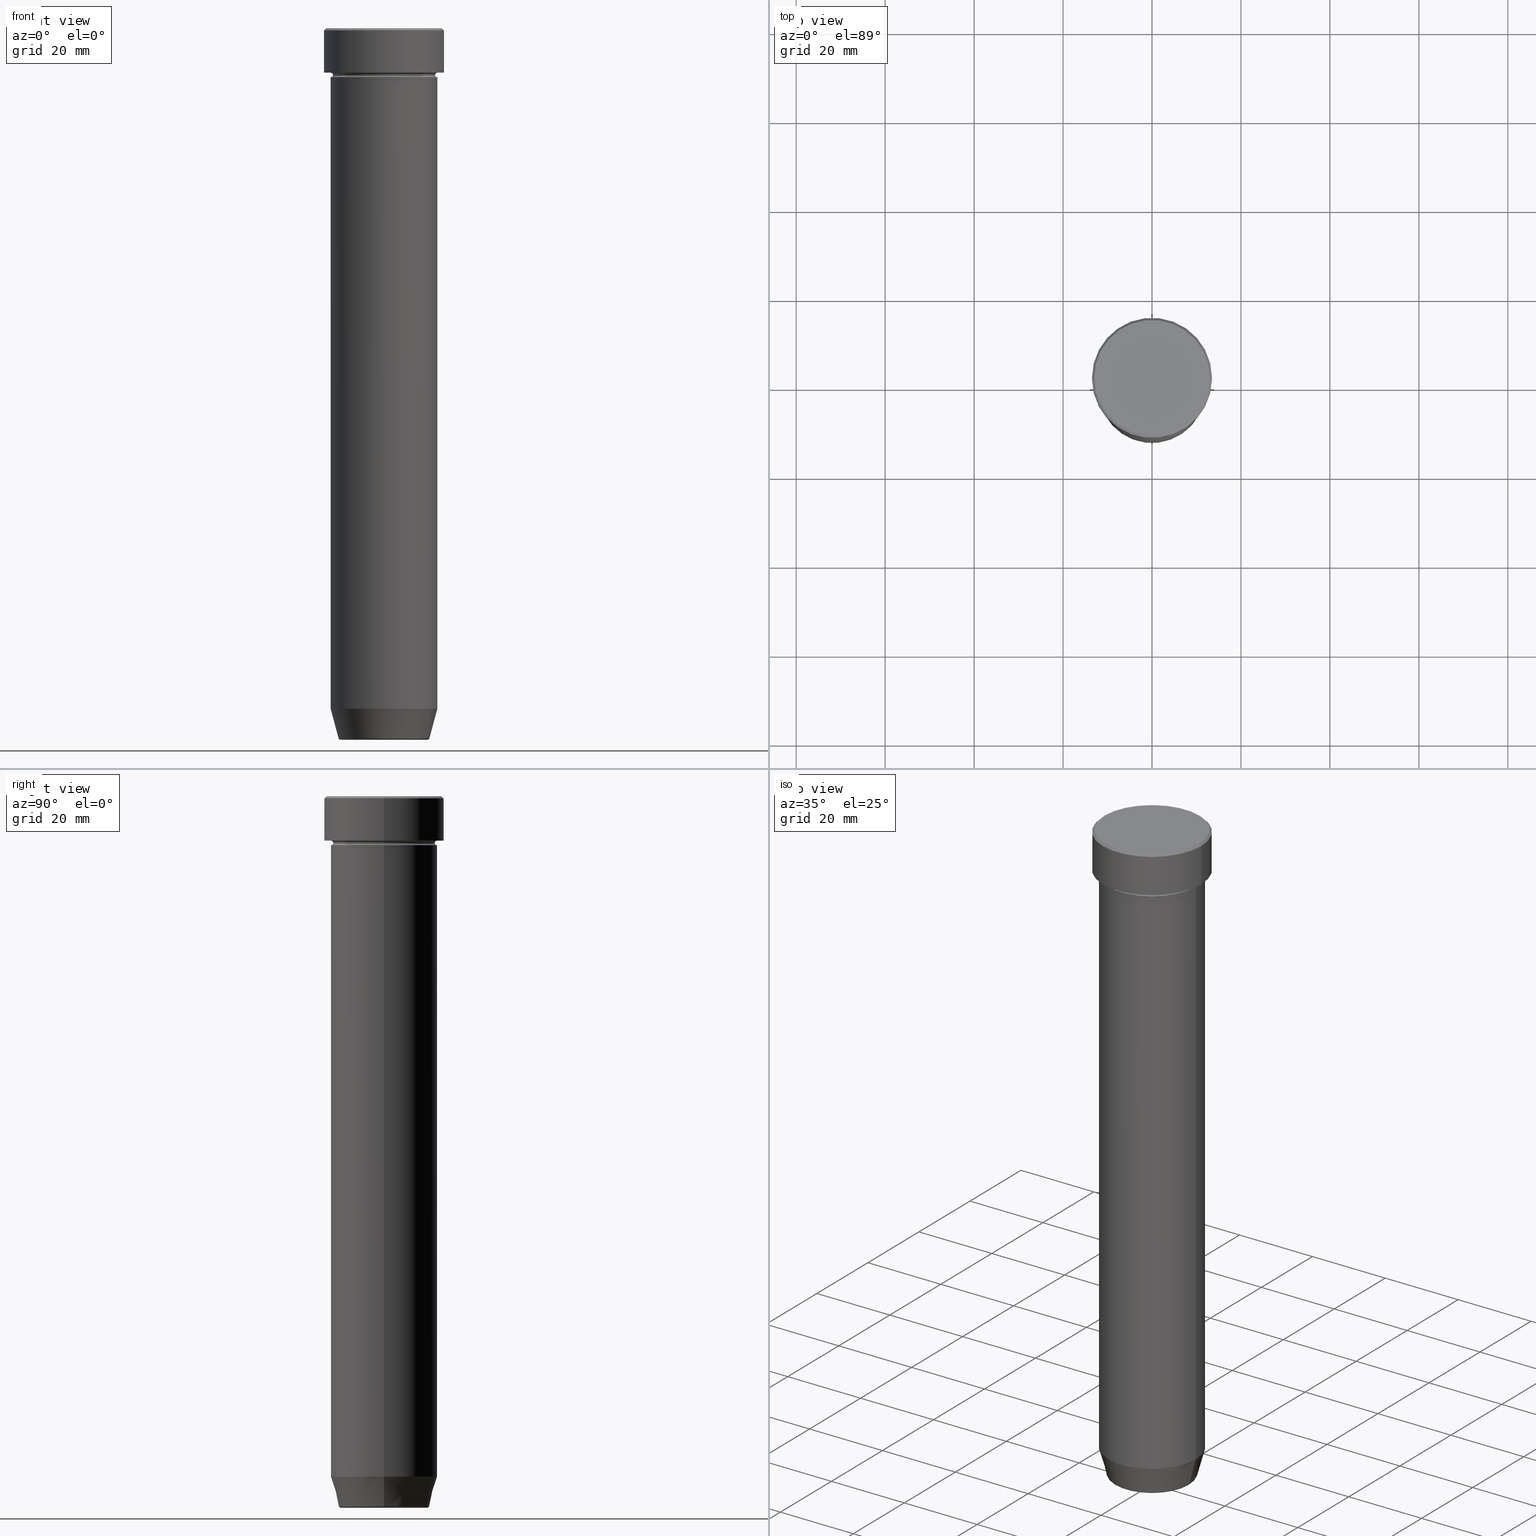
[diagram: canonical four-view strip — front | top / right | iso, engineering-drawing reading convention]
A machine part, canonical four-view strip (front | top / right | iso — engineering-drawing reading convention). The complete STEP part file that produces these views, byte-faithful:
ISO-10303-21;
HEADER;
FILE_DESCRIPTION (( 'STEP AP203' ),
    '1' );
FILE_NAME ('dc80.STEP',
    '2024-01-02T19:19:34',
    ( '' ),
    ( '' ),
    'SwSTEP 2.0',
    'SolidWorks 2019',
    '' );
FILE_SCHEMA (( 'CONFIG_CONTROL_DESIGN' ));
ENDSEC;

DATA;
#1 = SECURITY_CLASSIFICATION_LEVEL ( 'unclassified' ) ;
#2 = ADVANCED_FACE ( 'NONE', ( #145 ), #514, .T. ) ;
#3 = COORDINATED_UNIVERSAL_TIME_OFFSET ( 1, 0, .AHEAD. ) ;
#4 = ORIENTED_EDGE ( 'NONE', *, *, #65, .T. ) ;
#5 = CIRCLE ( 'NONE', #372, 12.00000000000000000 ) ;
#6 = LOCAL_TIME ( 20, 19, 34.00000000000000000, #332 ) ;
#7 = DIRECTION ( 'NONE',  ( 0.000000000000000000, 0.000000000000000000, -1.000000000000000000 ) ) ;
#8 = DIRECTION ( 'NONE',  ( 1.000000000000000000, 0.000000000000000000, 0.000000000000000000 ) ) ;
#9 = CARTESIAN_POINT ( 'NONE',  ( 0.000000000000000000, 0.000000000000000000, -27.00000000000000000 ) ) ;
#10 = CALENDAR_DATE ( 2024, 2, 1 ) ;
#11 = CARTESIAN_POINT ( 'NONE',  ( 0.000000000000000000, 0.000000000000000000, 0.000000000000000000 ) ) ;
#12 = CARTESIAN_POINT ( 'NONE',  ( -13.50000000000000000, 1.653273178848926867E-15, -10.00000000000000000 ) ) ;
#13 = PRODUCT_DEFINITION ( 'NEZN�M�', '', #16, #462 ) ;
#14 = ORIENTED_EDGE ( 'NONE', *, *, #20, .F. ) ;
#15 = AXIS2_PLACEMENT_3D ( 'NONE', #349, #395, #441 ) ;
#16 = PRODUCT_DEFINITION_FORMATION_WITH_SPECIFIED_SOURCE ( 'LIBOVOLN�', '', #133, .NOT_KNOWN. ) ;
#17 = DIRECTION ( 'NONE',  ( 0.000000000000000000, 0.000000000000000000, -1.000000000000000000 ) ) ;
#18 = CARTESIAN_POINT ( 'NONE',  ( 12.00000000000000000, 0.000000000000000000, -11.00000000000000000 ) ) ;
#19 = CARTESIAN_POINT ( 'NONE',  ( 0.000000000000000000, 0.000000000000000000, 0.000000000000000000 ) ) ;
#20 = EDGE_CURVE ( 'NONE', #39, #230, #48, .T. ) ;
#21 = ORIENTED_EDGE ( 'NONE', *, *, #258, .T. ) ;
#22 = DIRECTION ( 'NONE',  ( -1.000000000000000000, 0.000000000000000000, 0.000000000000000000 ) ) ;
#23 = CARTESIAN_POINT ( 'NONE',  ( 11.50000000000000000, 0.000000000000000000, -10.49999999999999822 ) ) ;
#24 = DIRECTION ( 'NONE',  ( 1.000000000000000000, 0.000000000000000000, 0.000000000000000000 ) ) ;
#25 = ORIENTED_EDGE ( 'NONE', *, *, #494, .F. ) ;
#26 = CIRCLE ( 'NONE', #438, 9.740692158992649397 ) ;
#27 = TOROIDAL_SURFACE ( 'NONE', #505, 12.00000000000000000, 0.5000000000000000000 ) ;
#28 = DIRECTION ( 'NONE',  ( -0.000000000000000000, -0.000000000000000000, 1.000000000000000000 ) ) ;
#29 = PLANE ( 'NONE',  #138 ) ;
#30 = ORIENTED_EDGE ( 'NONE', *, *, #73, .T. ) ;
#31 = CARTESIAN_POINT ( 'NONE',  ( 0.000000000000000000, 0.000000000000000000, -159.5000000000000000 ) ) ;
#32 = EDGE_CURVE ( 'NONE', #230, #39, #99, .T. ) ;
#33 = CYLINDRICAL_SURFACE ( 'NONE', #439, 13.50000000000000000 ) ;
#34 = ORIENTED_EDGE ( 'NONE', *, *, #526, .T. ) ;
#35 = EDGE_CURVE ( 'NONE', #39, #263, #57, .T. ) ;
#36 = PLANE ( 'NONE',  #284 ) ;
#37 = ORIENTED_EDGE ( 'NONE', *, *, #449, .F. ) ;
#38 = DIRECTION ( 'NONE',  ( -0.7071067811865439090, 0.000000000000000000, -0.7071067811865512365 ) ) ;
#39 = VERTEX_POINT ( 'NONE', #249 ) ;
#40 = AXIS2_PLACEMENT_3D ( 'NONE', #440, #518, #66 ) ;
#41 = FACE_OUTER_BOUND ( 'NONE', #409, .T. ) ;
#42 = ADVANCED_FACE ( 'NONE', ( #245 ), #259, .T. ) ;
#43 = ORIENTED_EDGE ( 'NONE', *, *, #526, .F. ) ;
#44 = ORIENTED_EDGE ( 'NONE', *, *, #236, .F. ) ;
#45 = CARTESIAN_POINT ( 'NONE',  ( -11.50000000000000000, 1.438959988998139963E-15, -10.49999999999999822 ) ) ;
#46 = DIRECTION ( 'NONE',  ( -1.000000000000000000, 1.224646799147353454E-16, 0.000000000000000000 ) ) ;
#47 = CARTESIAN_POINT ( 'NONE',  ( -12.99999999999999645, 0.000000000000000000, 0.000000000000000000 ) ) ;
#48 = CIRCLE ( 'NONE', #536, 12.00000000000000000 ) ;
#49 = AXIS2_PLACEMENT_3D ( 'NONE', #31, #78, #24 ) ;
#50 = PERSON_AND_ORGANIZATION ( #545, #285 ) ;
#51 = DIRECTION ( 'NONE',  ( 1.000000000000000000, 0.000000000000000000, 0.000000000000000000 ) ) ;
#52 = ADVANCED_FACE ( 'NONE', ( #561 ), #265, .T. ) ;
#53 = DATE_AND_TIME ( #331, #308 ) ;
#54 = ORIENTED_EDGE ( 'NONE', *, *, #486, .T. ) ;
#55 = EDGE_CURVE ( 'NONE', #412, #227, #67, .T. ) ;
#56 = APPROVAL_DATE_TIME ( #148, #509 ) ;
#57 = LINE ( 'NONE', #512, #511 ) ;
#58 = SHAPE_DEFINITION_REPRESENTATION ( #497, #396 ) ;
#59 = CIRCLE ( 'NONE', #478, 0.5000000000000004441 ) ;
#60 = VECTOR ( 'NONE', #343, 1000.000000000000000 ) ;
#61 = APPROVAL_STATUS ( 'not_yet_approved' ) ;
#62 = DIRECTION ( 'NONE',  ( 0.000000000000000000, 0.000000000000000000, -1.000000000000000000 ) ) ;
#63 = CARTESIAN_POINT ( 'NONE',  ( 12.00000000000000000, 0.000000000000000000, -27.00000000000000000 ) ) ;
#64 = EDGE_LOOP ( 'NONE', ( #356, #21, #280, #274 ) ) ;
#65 = EDGE_CURVE ( 'NONE', #333, #263, #114, .T. ) ;
#66 = DIRECTION ( 'NONE',  ( -1.000000000000000000, 0.000000000000000000, 0.000000000000000000 ) ) ;
#67 = CIRCLE ( 'NONE', #371, 12.00000000000000000 ) ;
#68 = ORIENTED_EDGE ( 'NONE', *, *, #32, .F. ) ;
#69 = DIRECTION ( 'NONE',  ( -0.000000000000000000, -0.000000000000000000, 1.000000000000000000 ) ) ;
#70 = AXIS2_PLACEMENT_3D ( 'NONE', #303, #299, #568 ) ;
#71 = AXIS2_PLACEMENT_3D ( 'NONE', #452, #279, #534 ) ;
#72 = CC_DESIGN_PERSON_AND_ORGANIZATION_ASSIGNMENT ( #556, #244, ( #13 ) ) ;
#73 = EDGE_CURVE ( 'NONE', #348, #257, #26, .T. ) ;
#74 = LINE ( 'NONE', #433, #60 ) ;
#75 = ORIENTED_EDGE ( 'NONE', *, *, #255, .T. ) ;
#76 = DIRECTION ( 'NONE',  ( -0.000000000000000000, -0.000000000000000000, 1.000000000000000000 ) ) ;
#77 = VERTEX_POINT ( 'NONE', #547 ) ;
#78 = DIRECTION ( 'NONE',  ( -0.000000000000000000, -0.000000000000000000, 1.000000000000000000 ) ) ;
#79 = ORIENTED_EDGE ( 'NONE', *, *, #312, .F. ) ;
#80 = FACE_OUTER_BOUND ( 'NONE', #557, .T. ) ;
#81 = CARTESIAN_POINT ( 'NONE',  ( 12.00000000000000000, 0.000000000000000000, -152.9999999999999716 ) ) ;
#82 = CONICAL_SURFACE ( 'NONE', #40, 12.99999999999999645, 0.7853981633974431720 ) ;
#83 = DIRECTION ( 'NONE',  ( 1.000000000000000000, 0.000000000000000000, 0.000000000000000000 ) ) ;
#84 = FACE_OUTER_BOUND ( 'NONE', #397, .T. ) ;
#85 = DIRECTION ( 'NONE',  ( 1.000000000000000000, 0.000000000000000000, 0.000000000000000000 ) ) ;
#86 = DIRECTION ( 'NONE',  ( 1.000000000000000000, 0.000000000000000000, 0.000000000000000000 ) ) ;
#87 = ORIENTED_EDGE ( 'NONE', *, *, #255, .F. ) ;
#88 = CARTESIAN_POINT ( 'NONE',  ( 0.000000000000000000, 0.000000000000000000, -10.00000000000000000 ) ) ;
#89 = EDGE_LOOP ( 'NONE', ( #359, #390, #239, #87 ) ) ;
#90 = AXIS2_PLACEMENT_3D ( 'NONE', #217, #166, #488 ) ;
#91 = CC_DESIGN_PERSON_AND_ORGANIZATION_ASSIGNMENT ( #151, #105, ( #178 ) ) ;
#92 = DIRECTION ( 'NONE',  ( 1.000000000000000000, 0.000000000000000000, 0.000000000000000000 ) ) ;
#93 = CARTESIAN_POINT ( 'NONE',  ( -12.00000000000000000, 1.469576158976823947E-15, 0.000000000000000000 ) ) ;
#94 = EDGE_LOOP ( 'NONE', ( #186, #235, #500, #134 ) ) ;
#95 = CARTESIAN_POINT ( 'NONE',  ( 12.00000000000000000, 0.000000000000000000, -10.49999999999999822 ) ) ;
#96 = DIRECTION ( 'NONE',  ( 1.000000000000000000, 0.000000000000000000, 0.000000000000000000 ) ) ;
#97 = DIRECTION ( 'NONE',  ( 0.000000000000000000, -1.000000000000000000, 0.000000000000000000 ) ) ;
#98 = ADVANCED_FACE ( 'NONE', ( #266 ), #82, .T. ) ;
#99 = CIRCLE ( 'NONE', #428, 12.00000000000000000 ) ;
#100 = TOROIDAL_SURFACE ( 'NONE', #292, 12.00000000000000000, 0.5000000000000000000 ) ;
#101 = PERSON_AND_ORGANIZATION ( #545, #285 ) ;
#102 = ORIENTED_EDGE ( 'NONE', *, *, #382, .T. ) ;
#103 = ADVANCED_FACE ( 'NONE', ( #430 ), #563, .T. ) ;
#104 = CARTESIAN_POINT ( 'NONE',  ( 0.000000000000000000, 0.000000000000000000, 0.000000000000000000 ) ) ;
#105 = PERSON_AND_ORGANIZATION_ROLE ( 'classification_officer' ) ;
#106 = APPLICATION_PROTOCOL_DEFINITION ( 'international standard', 'config_control_design', 1994, #194 ) ;
#107 = DIRECTION ( 'NONE',  ( 1.000000000000000000, 0.000000000000000000, 0.000000000000000000 ) ) ;
#108 = AXIS2_PLACEMENT_3D ( 'NONE', #110, #337, #399 ) ;
#109 = DIRECTION ( 'NONE',  ( -1.000000000000000000, 1.224646799147353454E-16, 0.000000000000000000 ) ) ;
#110 = CARTESIAN_POINT ( 'NONE',  ( 0.000000000000000000, 0.000000000000000000, -160.0000000000000000 ) ) ;
#111 = CC_DESIGN_PERSON_AND_ORGANIZATION_ASSIGNMENT ( #200, #154, ( #133 ) ) ;
#112 = CARTESIAN_POINT ( 'NONE',  ( 0.000000000000000000, 0.000000000000000000, -27.00000000000000000 ) ) ;
#113 = DIRECTION ( 'NONE',  ( 0.000000000000000000, -1.000000000000000000, 0.000000000000000000 ) ) ;
#114 = CIRCLE ( 'NONE', #116, 12.00000000000000000 ) ;
#115 = VERTEX_POINT ( 'NONE', #63 ) ;
#116 = AXIS2_PLACEMENT_3D ( 'NONE', #543, #501, #360 ) ;
#117 = CIRCLE ( 'NONE', #431, 13.50000000000000000 ) ;
#118 = FACE_OUTER_BOUND ( 'NONE', #455, .T. ) ;
#119 = ORIENTED_EDGE ( 'NONE', *, *, #419, .F. ) ;
#120 = CARTESIAN_POINT ( 'NONE',  ( 9.740692158992649397, 0.000000000000000000, -160.0000000000000000 ) ) ;
#121 = VERTEX_POINT ( 'NONE', #570 ) ;
#122 = DIRECTION ( 'NONE',  ( -1.000000000000000000, 0.000000000000000000, 0.000000000000000000 ) ) ;
#123 = DIRECTION ( 'NONE',  ( -0.000000000000000000, -0.000000000000000000, 1.000000000000000000 ) ) ;
#124 = ORIENTED_EDGE ( 'NONE', *, *, #221, .T. ) ;
#125 = DIRECTION ( 'NONE',  ( -0.000000000000000000, -0.000000000000000000, 1.000000000000000000 ) ) ;
#126 = AXIS2_PLACEMENT_3D ( 'NONE', #211, #388, #326 ) ;
#127 = AXIS2_PLACEMENT_3D ( 'NONE', #528, #113, #479 ) ;
#128 = DIRECTION ( 'NONE',  ( 1.000000000000000000, 0.000000000000000000, 0.000000000000000000 ) ) ;
#129 = CARTESIAN_POINT ( 'NONE',  ( 0.000000000000000000, 12.00000000000000000, -27.00000000000000000 ) ) ;
#130 = ORIENTED_EDGE ( 'NONE', *, *, #287, .F. ) ;
#131 = DIRECTION ( 'NONE',  ( -1.224646799147353207E-16, 1.000000000000000000, 0.000000000000000000 ) ) ;
#132 = CARTESIAN_POINT ( 'NONE',  ( 0.000000000000000000, 1.347111479062088839E-14, -160.0000000000000000 ) ) ;
#133 = PRODUCT ( 'dc80', 'dc80', '', ( #246 ) ) ;
#134 = ORIENTED_EDGE ( 'NONE', *, *, #281, .F. ) ;
#135 = EDGE_CURVE ( 'NONE', #227, #473, #339, .T. ) ;
#136 = LINE ( 'NONE', #352, #393 ) ;
#137 = VERTEX_POINT ( 'NONE', #527 ) ;
#138 = AXIS2_PLACEMENT_3D ( 'NONE', #383, #347, #531 ) ;
#139 = AXIS2_PLACEMENT_3D ( 'NONE', #587, #317, #179 ) ;
#140 = ORIENTED_EDGE ( 'NONE', *, *, #20, .T. ) ;
#141 = CARTESIAN_POINT ( 'NONE',  ( 12.99999999999999645, 1.622657008870242882E-15, 0.000000000000000000 ) ) ;
#142 = EDGE_LOOP ( 'NONE', ( #411, #477, #310, #544 ) ) ;
#143 = EDGE_CURVE ( 'NONE', #473, #115, #5, .T. ) ;
#144 = PERSON_AND_ORGANIZATION ( #545, #285 ) ;
#145 = FACE_OUTER_BOUND ( 'NONE', #592, .T. ) ;
#146 = UNCERTAINTY_MEASURE_WITH_UNIT (LENGTH_MEASURE( 1.000000000000000082E-05 ), #448, 'distance_accuracy_value', 'NONE');
#147 = ORIENTED_EDGE ( 'NONE', *, *, #143, .F. ) ;
#148 = DATE_AND_TIME ( #368, #320 ) ;
#149 = CC_DESIGN_DATE_AND_TIME_ASSIGNMENT ( #369, #463, ( #13 ) ) ;
#150 = AXIS2_PLACEMENT_3D ( 'NONE', #11, #201, #564 ) ;
#151 = PERSON_AND_ORGANIZATION ( #545, #285 ) ;
#152 = DIRECTION ( 'NONE',  ( -0.000000000000000000, -0.000000000000000000, 1.000000000000000000 ) ) ;
#153 = ADVANCED_FACE ( 'NONE', ( #80 ), #450, .F. ) ;
#154 = PERSON_AND_ORGANIZATION_ROLE ( 'design_owner' ) ;
#155 = DIRECTION ( 'NONE',  ( 1.000000000000000000, 0.000000000000000000, 0.000000000000000000 ) ) ;
#156 = DIRECTION ( 'NONE',  ( 0.000000000000000000, 0.000000000000000000, -1.000000000000000000 ) ) ;
#157 = TOROIDAL_SURFACE ( 'NONE', #49, 9.740692158992649397, 0.5000000000000000000 ) ;
#158 = CARTESIAN_POINT ( 'NONE',  ( 0.000000000000000000, 0.000000000000000000, -152.9999999999999716 ) ) ;
#159 = VECTOR ( 'NONE', #571, 1000.000000000000000 ) ;
#160 = CARTESIAN_POINT ( 'NONE',  ( 13.50000000000000000, 0.000000000000000000, 0.000000000000000000 ) ) ;
#161 = ORIENTED_EDGE ( 'NONE', *, *, #73, .F. ) ;
#162 = CARTESIAN_POINT ( 'NONE',  ( 0.000000000000000000, 0.000000000000000000, -10.49999999999999822 ) ) ;
#163 = DIRECTION ( 'NONE',  ( -1.000000000000000000, 0.000000000000000000, 0.000000000000000000 ) ) ;
#164 = ADVANCED_FACE ( 'NONE', ( #222 ), #100, .F. ) ;
#165 = ORIENTED_EDGE ( 'NONE', *, *, #195, .F. ) ;
#166 = DIRECTION ( 'NONE',  ( -0.000000000000000000, -0.000000000000000000, 1.000000000000000000 ) ) ;
#167 = VECTOR ( 'NONE', #69, 1000.000000000000000 ) ;
#168 = VECTOR ( 'NONE', #445, 1000.000000000000000 ) ;
#169 = DIRECTION ( 'NONE',  ( -0.000000000000000000, -0.000000000000000000, 1.000000000000000000 ) ) ;
#170 = FACE_OUTER_BOUND ( 'NONE', #175, .T. ) ;
#171 = ORIENTED_EDGE ( 'NONE', *, *, #65, .F. ) ;
#172 = DIRECTION ( 'NONE',  ( -0.000000000000000000, -0.000000000000000000, 1.000000000000000000 ) ) ;
#173 = EDGE_CURVE ( 'NONE', #277, #355, #576, .T. ) ;
#174 = DIRECTION ( 'NONE',  ( 1.000000000000000000, 0.000000000000000000, 0.000000000000000000 ) ) ;
#175 = EDGE_LOOP ( 'NONE', ( #25, #387 ) ) ;
#176 = CLOSED_SHELL ( 'NONE', ( #203, #164, #242, #2, #180, #581, #551, #524, #378, #499, #153, #594, #98 ) ) ;
#177 = CIRCLE ( 'NONE', #275, 10.22365507213718239 ) ;
#178 = SECURITY_CLASSIFICATION ( '', '', #1 ) ;
#179 = DIRECTION ( 'NONE',  ( 1.000000000000000000, 0.000000000000000000, 0.000000000000000000 ) ) ;
#180 = ADVANCED_FACE ( 'NONE', ( #444 ), #269, .T. ) ;
#181 = DIRECTION ( 'NONE',  ( 0.000000000000000000, 0.000000000000000000, -1.000000000000000000 ) ) ;
#182 = ADVANCED_FACE ( 'NONE', ( #542 ), #36, .F. ) ;
#183 = ORIENTED_EDGE ( 'NONE', *, *, #198, .T. ) ;
#184 = DIRECTION ( 'NONE',  ( 1.000000000000000000, 0.000000000000000000, 0.000000000000000000 ) ) ;
#185 = VERTEX_POINT ( 'NONE', #546 ) ;
#186 = ORIENTED_EDGE ( 'NONE', *, *, #173, .F. ) ;
#187 = PLANE ( 'NONE',  #192 ) ;
#188 = ORIENTED_EDGE ( 'NONE', *, *, #287, .T. ) ;
#189 = EDGE_LOOP ( 'NONE', ( #529, #573, #579, #44 ) ) ;
#190 = VECTOR ( 'NONE', #193, 1000.000000000000000 ) ;
#191 = CARTESIAN_POINT ( 'NONE',  ( 0.000000000000000000, 0.000000000000000000, -159.6294095225512706 ) ) ;
#192 = AXIS2_PLACEMENT_3D ( 'NONE', #129, #309, #238 ) ;
#193 = DIRECTION ( 'NONE',  ( 0.7071067811865439090, 8.659560562354888485E-17, -0.7071067811865512365 ) ) ;
#194 = APPLICATION_CONTEXT ( 'configuration controlled 3d designs of mechanical parts and assemblies' ) ;
#195 = EDGE_CURVE ( 'NONE', #237, #434, #429, .T. ) ;
#196 = AXIS2_PLACEMENT_3D ( 'NONE', #442, #172, #128 ) ;
#197 = CALENDAR_DATE ( 2024, 2, 1 ) ;
#198 = EDGE_CURVE ( 'NONE', #348, #121, #215, .T. ) ;
#199 = FACE_OUTER_BOUND ( 'NONE', #540, .T. ) ;
#200 = PERSON_AND_ORGANIZATION ( #545, #285 ) ;
#201 = DIRECTION ( 'NONE',  ( -0.000000000000000000, -0.000000000000000000, 1.000000000000000000 ) ) ;
#202 = CARTESIAN_POINT ( 'NONE',  ( -12.00000000000000000, 1.469576158976823947E-15, -152.9999999999999716 ) ) ;
#203 = ADVANCED_FACE ( 'NONE', ( #291 ), #530, .T. ) ;
#204 = EDGE_CURVE ( 'NONE', #434, #263, #59, .T. ) ;
#205 = CIRCLE ( 'NONE', #502, 12.00000000000000000 ) ;
#206 = FACE_BOUND ( 'NONE', #590, .T. ) ;
#207 = AXIS2_PLACEMENT_3D ( 'NONE', #361, #503, #46 ) ;
#208 = ORIENTED_EDGE ( 'NONE', *, *, #456, .T. ) ;
#209 = LINE ( 'NONE', #386, #159 ) ;
#210 = ORIENTED_EDGE ( 'NONE', *, *, #522, .F. ) ;
#211 = CARTESIAN_POINT ( 'NONE',  ( 0.000000000000000000, 0.000000000000000000, -160.0000000000000000 ) ) ;
#212 = DIRECTION ( 'NONE',  ( -0.000000000000000000, -0.000000000000000000, 1.000000000000000000 ) ) ;
#213 = CARTESIAN_POINT ( 'NONE',  ( 0.000000000000000000, 0.000000000000000000, -27.00000000000000000 ) ) ;
#214 = ORIENTED_EDGE ( 'NONE', *, *, #456, .F. ) ;
#215 = CIRCLE ( 'NONE', #415, 0.5000000000000004441 ) ;
#216 = VERTEX_POINT ( 'NONE', #472 ) ;
#217 = CARTESIAN_POINT ( 'NONE',  ( 0.000000000000000000, 0.000000000000000000, -10.49999999999999822 ) ) ;
#218 = CIRCLE ( 'NONE', #127, 0.5000000000000004441 ) ;
#219 = APPROVAL ( #61, 'NEUR�EN�' ) ;
#220 = EDGE_LOOP ( 'NONE', ( #293, #30 ) ) ;
#221 = EDGE_CURVE ( 'NONE', #77, #137, #267, .T. ) ;
#222 = FACE_OUTER_BOUND ( 'NONE', #582, .T. ) ;
#223 = DIRECTION ( 'NONE',  ( 1.000000000000000000, 0.000000000000000000, 0.000000000000000000 ) ) ;
#224 = VERTEX_POINT ( 'NONE', #12 ) ;
#225 = ORIENTED_EDGE ( 'NONE', *, *, #143, .T. ) ;
#226 = LINE ( 'NONE', #93, #168 ) ;
#227 = VERTEX_POINT ( 'NONE', #202 ) ;
#228 = ADVANCED_FACE ( 'NONE', ( #425 ), #367, .F. ) ;
#229 = CARTESIAN_POINT ( 'NONE',  ( -12.00000000000000000, 0.000000000000000000, -9.999999999999998224 ) ) ;
#230 = VERTEX_POINT ( 'NONE', #467 ) ;
#231 = CARTESIAN_POINT ( 'NONE',  ( -12.00000000000000000, 0.000000000000000000, -10.49999999999999822 ) ) ;
#232 = AXIS2_PLACEMENT_3D ( 'NONE', #437, #28, #86 ) ;
#233 = CONICAL_SURFACE ( 'NONE', #108, 10.12435565298212659, 0.2617993877991501850 ) ;
#234 = EDGE_LOOP ( 'NONE', ( #413, #188, #208, #147 ) ) ;
#235 = ORIENTED_EDGE ( 'NONE', *, *, #283, .T. ) ;
#236 = EDGE_CURVE ( 'NONE', #384, #77, #379, .T. ) ;
#237 = VERTEX_POINT ( 'NONE', #45 ) ;
#238 = DIRECTION ( 'NONE',  ( -1.000000000000000000, 0.000000000000000000, -0.000000000000000000 ) ) ;
#239 = ORIENTED_EDGE ( 'NONE', *, *, #449, .T. ) ;
#240 = CARTESIAN_POINT ( 'NONE',  ( 12.99999999999999645, 1.592040838891558701E-15, 0.000000000000000000 ) ) ;
#241 = ORIENTED_EDGE ( 'NONE', *, *, #55, .T. ) ;
#242 = ADVANCED_FACE ( 'NONE', ( #199 ), #260, .F. ) ;
#243 = CIRCLE ( 'NONE', #139, 13.50000000000000000 ) ;
#244 = PERSON_AND_ORGANIZATION_ROLE ( 'creator' ) ;
#245 = FACE_OUTER_BOUND ( 'NONE', #89, .T. ) ;
#246 = MECHANICAL_CONTEXT ( 'NONE', #194, 'mechanical' ) ;
#247 = APPROVAL ( #374, 'NEUR�EN�' ) ;
#248 = DATE_AND_TIME ( #254, #6 ) ;
#249 = CARTESIAN_POINT ( 'NONE',  ( 12.00000000000000000, 0.000000000000000000, -27.00000000000000000 ) ) ;
#250 = CARTESIAN_POINT ( 'NONE',  ( 0.000000000000000000, 0.000000000000000000, 0.000000000000000000 ) ) ;
#251 = CIRCLE ( 'NONE', #392, 0.5000000000000004441 ) ;
#252 = DIRECTION ( 'NONE',  ( 0.000000000000000000, 0.000000000000000000, 1.000000000000000000 ) ) ;
#253 =( GEOMETRIC_REPRESENTATION_CONTEXT ( 3 ) GLOBAL_UNCERTAINTY_ASSIGNED_CONTEXT ( ( #146 ) ) GLOBAL_UNIT_ASSIGNED_CONTEXT ( ( #448, #470, #325 ) ) REPRESENTATION_CONTEXT ( 'NONE', 'WORKASPACE' ) );
#254 = CALENDAR_DATE ( 2024, 2, 1 ) ;
#255 = EDGE_CURVE ( 'NONE', #121, #216, #177, .T. ) ;
#256 = CARTESIAN_POINT ( 'NONE',  ( -12.99999999999999645, 0.000000000000000000, 0.000000000000000000 ) ) ;
#257 = VERTEX_POINT ( 'NONE', #120 ) ;
#258 = EDGE_CURVE ( 'NONE', #434, #237, #490, .T. ) ;
#259 = TOROIDAL_SURFACE ( 'NONE', #584, 9.740692158992649397, 0.5000000000000000000 ) ;
#260 = TOROIDAL_SURFACE ( 'NONE', #585, 12.00000000000000000, 0.5000000000000000000 ) ;
#261 = CARTESIAN_POINT ( 'NONE',  ( -9.740692158992649397, 1.222463696683473618E-15, -160.0000000000000000 ) ) ;
#262 = ADVANCED_FACE ( 'NONE', ( #346 ), #157, .T. ) ;
#263 = VERTEX_POINT ( 'NONE', #18 ) ;
#264 = EDGE_CURVE ( 'NONE', #263, #333, #423, .T. ) ;
#265 = CYLINDRICAL_SURFACE ( 'NONE', #150, 12.00000000000000000 ) ;
#266 = FACE_OUTER_BOUND ( 'NONE', #142, .T. ) ;
#267 = CIRCLE ( 'NONE', #558, 13.50000000000000000 ) ;
#268 = APPROVAL_PERSON_ORGANIZATION ( #50, #219, #420 ) ;
#269 = CYLINDRICAL_SURFACE ( 'NONE', #196, 13.50000000000000000 ) ;
#270 = LINE ( 'NONE', #338, #167 ) ;
#271 = EDGE_CURVE ( 'NONE', #224, #137, #270, .T. ) ;
#272 = EDGE_CURVE ( 'NONE', #257, #348, #504, .T. ) ;
#273 = DIRECTION ( 'NONE',  ( 0.000000000000000000, -0.000000000000000000, 1.000000000000000000 ) ) ;
#274 = ORIENTED_EDGE ( 'NONE', *, *, #351, .F. ) ;
#275 = AXIS2_PLACEMENT_3D ( 'NONE', #191, #125, #22 ) ;
#276 = CIRCLE ( 'NONE', #321, 13.50000000000000000 ) ;
#277 = VERTEX_POINT ( 'NONE', #141 ) ;
#278 = CARTESIAN_POINT ( 'NONE',  ( 0.000000000000000000, 0.000000000000000000, -0.5000000000000091038 ) ) ;
#279 = DIRECTION ( 'NONE',  ( -0.000000000000000000, -0.000000000000000000, 1.000000000000000000 ) ) ;
#280 = ORIENTED_EDGE ( 'NONE', *, *, #312, .T. ) ;
#281 = EDGE_CURVE ( 'NONE', #355, #137, #454, .T. ) ;
#282 = PERSON_AND_ORGANIZATION_ROLE ( 'creator' ) ;
#283 = EDGE_CURVE ( 'NONE', #277, #77, #583, .T. ) ;
#284 = AXIS2_PLACEMENT_3D ( 'NONE', #132, #363, #377 ) ;
#285 = ORGANIZATION ( 'NEUR�EN�', 'NEUR�EN�', '' ) ;
#286 = COORDINATED_UNIVERSAL_TIME_OFFSET ( 1, 0, .AHEAD. ) ;
#287 = EDGE_CURVE ( 'NONE', #227, #412, #513, .T. ) ;
#288 = CARTESIAN_POINT ( 'NONE',  ( 0.000000000000000000, 0.000000000000000000, 0.000000000000000000 ) ) ;
#289 = CARTESIAN_POINT ( 'NONE',  ( 0.000000000000000000, 0.000000000000000000, -27.00000000000000000 ) ) ;
#290 = APPROVAL_DATE_TIME ( #53, #247 ) ;
#291 = FACE_OUTER_BOUND ( 'NONE', #94, .T. ) ;
#292 = AXIS2_PLACEMENT_3D ( 'NONE', #314, #533, #122 ) ;
#293 = ORIENTED_EDGE ( 'NONE', *, *, #272, .T. ) ;
#294 = DIRECTION ( 'NONE',  ( -1.000000000000000000, 0.000000000000000000, -0.000000000000000000 ) ) ;
#295 = DIRECTION ( 'NONE',  ( -0.000000000000000000, -0.000000000000000000, 1.000000000000000000 ) ) ;
#296 = ORIENTED_EDGE ( 'NONE', *, *, #382, .F. ) ;
#297 = CARTESIAN_POINT ( 'NONE',  ( -12.00000000000000000, 1.469576158976823947E-15, 0.000000000000000000 ) ) ;
#298 = AXIS2_PLACEMENT_3D ( 'NONE', #19, #212, #336 ) ;
#299 = DIRECTION ( 'NONE',  ( -0.000000000000000000, -0.000000000000000000, 1.000000000000000000 ) ) ;
#300 = CIRCLE ( 'NONE', #469, 12.99999999999999645 ) ;
#301 = EDGE_CURVE ( 'NONE', #434, #185, #251, .T. ) ;
#302 = CARTESIAN_POINT ( 'NONE',  ( 0.000000000000000000, 0.000000000000000000, -9.999999999999998224 ) ) ;
#303 = CARTESIAN_POINT ( 'NONE',  ( 0.000000000000000000, 0.000000000000000000, -159.6294095225512706 ) ) ;
#304 = CARTESIAN_POINT ( 'NONE',  ( 0.000000000000000000, 0.000000000000000000, 0.000000000000000000 ) ) ;
#305 = AXIS2_PLACEMENT_3D ( 'NONE', #104, #562, #155 ) ;
#306 = VECTOR ( 'NONE', #474, 1000.000000000000000 ) ;
#307 = DIRECTION ( 'NONE',  ( -0.000000000000000000, -0.000000000000000000, 1.000000000000000000 ) ) ;
#308 = LOCAL_TIME ( 20, 19, 34.00000000000000000, #286 ) ;
#309 = DIRECTION ( 'NONE',  ( 0.000000000000000000, 0.000000000000000000, -1.000000000000000000 ) ) ;
#310 = ORIENTED_EDGE ( 'NONE', *, *, #281, .T. ) ;
#311 = DIRECTION ( 'NONE',  ( -1.000000000000000000, -1.224646799147353454E-16, 0.000000000000000000 ) ) ;
#312 = EDGE_CURVE ( 'NONE', #237, #555, #328, .T. ) ;
#313 = ORIENTED_EDGE ( 'NONE', *, *, #351, .T. ) ;
#314 = CARTESIAN_POINT ( 'NONE',  ( 0.000000000000000000, 0.000000000000000000, -10.49999999999999822 ) ) ;
#315 = CARTESIAN_POINT ( 'NONE',  ( 0.000000000000000000, 0.000000000000000000, -10.49999999999999822 ) ) ;
#316 = EDGE_LOOP ( 'NONE', ( #366, #225 ) ) ;
#317 = DIRECTION ( 'NONE',  ( -0.000000000000000000, -0.000000000000000000, 1.000000000000000000 ) ) ;
#318 = ORIENTED_EDGE ( 'NONE', *, *, #35, .F. ) ;
#319 = AXIS2_PLACEMENT_3D ( 'NONE', #9, #7, #294 ) ;
#320 = LOCAL_TIME ( 20, 19, 34.00000000000000000, #516 ) ;
#321 = AXIS2_PLACEMENT_3D ( 'NONE', #476, #17, #223 ) ;
#322 = DIRECTION ( 'NONE',  ( -0.000000000000000000, -0.000000000000000000, 1.000000000000000000 ) ) ;
#323 = ORIENTED_EDGE ( 'NONE', *, *, #204, .F. ) ;
#324 = ORIENTED_EDGE ( 'NONE', *, *, #195, .T. ) ;
#325 =( NAMED_UNIT ( * ) SI_UNIT ( $, .STERADIAN. ) SOLID_ANGLE_UNIT ( ) );
#326 = DIRECTION ( 'NONE',  ( 1.000000000000000000, 0.000000000000000000, 0.000000000000000000 ) ) ;
#327 = DATE_AND_TIME ( #197, #416 ) ;
#328 = CIRCLE ( 'NONE', #596, 0.5000000000000004441 ) ;
#329 = APPROVAL_DATE_TIME ( #248, #219 ) ;
#330 = ORIENTED_EDGE ( 'NONE', *, *, #32, .T. ) ;
#331 = CALENDAR_DATE ( 2024, 2, 1 ) ;
#332 = COORDINATED_UNIVERSAL_TIME_OFFSET ( 1, 0, .AHEAD. ) ;
#333 = VERTEX_POINT ( 'NONE', #427 ) ;
#334 = DIRECTION ( 'NONE',  ( -0.000000000000000000, -0.000000000000000000, 1.000000000000000000 ) ) ;
#335 = AXIS2_PLACEMENT_3D ( 'NONE', #506, #334, #422 ) ;
#336 = DIRECTION ( 'NONE',  ( 1.000000000000000000, 0.000000000000000000, 0.000000000000000000 ) ) ;
#337 = DIRECTION ( 'NONE',  ( -0.000000000000000000, -0.000000000000000000, 1.000000000000000000 ) ) ;
#338 = CARTESIAN_POINT ( 'NONE',  ( -13.50000000000000000, 1.653273178848926867E-15, 0.000000000000000000 ) ) ;
#339 = LINE ( 'NONE', #297, #548 ) ;
#340 = DIRECTION ( 'NONE',  ( -0.000000000000000000, -0.000000000000000000, 1.000000000000000000 ) ) ;
#341 = ORIENTED_EDGE ( 'NONE', *, *, #264, .T. ) ;
#342 = PRODUCT_RELATED_PRODUCT_CATEGORY ( 'detail', '', ( #133 ) ) ;
#343 = DIRECTION ( 'NONE',  ( -0.000000000000000000, -0.000000000000000000, 1.000000000000000000 ) ) ;
#344 = CC_DESIGN_APPROVAL ( #247, ( #178 ) ) ;
#345 = ORIENTED_EDGE ( 'NONE', *, *, #301, .T. ) ;
#346 = FACE_OUTER_BOUND ( 'NONE', #484, .T. ) ;
#347 = DIRECTION ( 'NONE',  ( 0.000000000000000000, 0.000000000000000000, -1.000000000000000000 ) ) ;
#348 = VERTEX_POINT ( 'NONE', #261 ) ;
#349 = CARTESIAN_POINT ( 'NONE',  ( 0.000000000000000000, 0.000000000000000000, -160.0000000000000000 ) ) ;
#350 = MANIFOLD_SOLID_BREP ( 'Zkosen�1', #176 ) ;
#351 = EDGE_CURVE ( 'NONE', #185, #555, #205, .T. ) ;
#352 = CARTESIAN_POINT ( 'NONE',  ( 10.12435565298212659, 0.000000000000000000, -160.0000000000000000 ) ) ;
#353 = MANIFOLD_SOLID_BREP ( 'Zaoblit4', #567 ) ;
#354 = CIRCLE ( 'NONE', #70, 10.22365507213718239 ) ;
#355 = VERTEX_POINT ( 'NONE', #256 ) ;
#356 = ORIENTED_EDGE ( 'NONE', *, *, #301, .F. ) ;
#357 = DIRECTION ( 'NONE',  ( -1.000000000000000000, 0.000000000000000000, 0.000000000000000000 ) ) ;
#358 = ORIENTED_EDGE ( 'NONE', *, *, #419, .T. ) ;
#359 = ORIENTED_EDGE ( 'NONE', *, *, #198, .F. ) ;
#360 = DIRECTION ( 'NONE',  ( 1.000000000000000000, 0.000000000000000000, 0.000000000000000000 ) ) ;
#361 = CARTESIAN_POINT ( 'NONE',  ( -12.00000000000000000, 1.469576158976823947E-15, -10.49999999999999822 ) ) ;
#362 = ORIENTED_EDGE ( 'NONE', *, *, #515, .T. ) ;
#363 = DIRECTION ( 'NONE',  ( 0.000000000000000000, -0.000000000000000000, 1.000000000000000000 ) ) ;
#364 = DIRECTION ( 'NONE',  ( 1.000000000000000000, 0.000000000000000000, 0.000000000000000000 ) ) ;
#365 = FACE_OUTER_BOUND ( 'NONE', #64, .T. ) ;
#366 = ORIENTED_EDGE ( 'NONE', *, *, #465, .T. ) ;
#367 = PLANE ( 'NONE',  #319 ) ;
#368 = CALENDAR_DATE ( 2024, 2, 1 ) ;
#369 = DATE_AND_TIME ( #10, #566 ) ;
#370 = ORIENTED_EDGE ( 'NONE', *, *, #522, .T. ) ;
#371 = AXIS2_PLACEMENT_3D ( 'NONE', #158, #523, #364 ) ;
#372 = AXIS2_PLACEMENT_3D ( 'NONE', #112, #169, #485 ) ;
#373 = CC_DESIGN_SECURITY_CLASSIFICATION ( #178, ( #16 ) ) ;
#374 = APPROVAL_STATUS ( 'not_yet_approved' ) ;
#375 = DIRECTION ( 'NONE',  ( -1.000000000000000000, 0.000000000000000000, 0.000000000000000000 ) ) ;
#376 = ADVANCED_FACE ( 'NONE', ( #118 ), #537, .T. ) ;
#377 = DIRECTION ( 'NONE',  ( 1.000000000000000000, 0.000000000000000000, 0.000000000000000000 ) ) ;
#378 = ADVANCED_FACE ( 'NONE', ( #206, #170 ), #29, .T. ) ;
#379 = LINE ( 'NONE', #160, #306 ) ;
#380 = AXIS2_PLACEMENT_3D ( 'NONE', #401, #307, #85 ) ;
#381 = CC_DESIGN_APPROVAL ( #509, ( #16 ) ) ;
#382 = EDGE_CURVE ( 'NONE', #216, #121, #354, .T. ) ;
#383 = CARTESIAN_POINT ( 'NONE',  ( 0.000000000000000000, 13.50000000000000000, -9.999999999999998224 ) ) ;
#384 = VERTEX_POINT ( 'NONE', #487 ) ;
#385 = ADVANCED_FACE ( 'NONE', ( #432 ), #233, .T. ) ;
#386 = CARTESIAN_POINT ( 'NONE',  ( -10.12435565298212659, 1.239875974385397166E-15, -160.0000000000000000 ) ) ;
#387 = ORIENTED_EDGE ( 'NONE', *, *, #486, .F. ) ;
#388 = DIRECTION ( 'NONE',  ( 0.000000000000000000, 0.000000000000000000, -1.000000000000000000 ) ) ;
#389 = DIRECTION ( 'NONE',  ( -0.000000000000000000, -0.000000000000000000, 1.000000000000000000 ) ) ;
#390 = ORIENTED_EDGE ( 'NONE', *, *, #272, .F. ) ;
#391 = ORIENTED_EDGE ( 'NONE', *, *, #258, .F. ) ;
#392 = AXIS2_PLACEMENT_3D ( 'NONE', #552, #131, #311 ) ;
#393 = VECTOR ( 'NONE', #597, 1000.000000000000000 ) ;
#394 = DIRECTION ( 'NONE',  ( 1.000000000000000000, 0.000000000000000000, 0.000000000000000000 ) ) ;
#395 = DIRECTION ( 'NONE',  ( -0.000000000000000000, -0.000000000000000000, 1.000000000000000000 ) ) ;
#396 = ADVANCED_BREP_SHAPE_REPRESENTATION ( 'dc80', ( #350, #353, #521 ), #253 ) ;
#397 = EDGE_LOOP ( 'NONE', ( #43, #330, #480, #171 ) ) ;
#398 = CARTESIAN_POINT ( 'NONE',  ( 0.000000000000000000, 0.000000000000000000, -160.0000000000000000 ) ) ;
#399 = DIRECTION ( 'NONE',  ( 1.000000000000000000, 0.000000000000000000, 0.000000000000000000 ) ) ;
#400 = ORIENTED_EDGE ( 'NONE', *, *, #204, .T. ) ;
#401 = CARTESIAN_POINT ( 'NONE',  ( 0.000000000000000000, 0.000000000000000000, -11.00000000000000000 ) ) ;
#402 = PLANE ( 'NONE',  #598 ) ;
#403 = DIRECTION ( 'NONE',  ( 0.000000000000000000, 0.000000000000000000, -1.000000000000000000 ) ) ;
#404 = VECTOR ( 'NONE', #38, 1000.000000000000000 ) ;
#405 = DIRECTION ( 'NONE',  ( -0.000000000000000000, -1.000000000000000000, -0.000000000000000000 ) ) ;
#406 = CIRCLE ( 'NONE', #424, 12.00000000000000000 ) ;
#407 = CARTESIAN_POINT ( 'NONE',  ( -12.00000000000000000, 1.469576158976823947E-15, -27.00000000000000000 ) ) ;
#408 = EDGE_CURVE ( 'NONE', #555, #185, #468, .T. ) ;
#409 = EDGE_LOOP ( 'NONE', ( #362, #553 ) ) ;
#410 = CARTESIAN_POINT ( 'NONE',  ( 0.000000000000000000, 0.000000000000000000, 0.000000000000000000 ) ) ;
#411 = ORIENTED_EDGE ( 'NONE', *, *, #283, .F. ) ;
#412 = VERTEX_POINT ( 'NONE', #81 ) ;
#413 = ORIENTED_EDGE ( 'NONE', *, *, #135, .F. ) ;
#414 = CARTESIAN_POINT ( 'NONE',  ( 0.000000000000000000, 0.000000000000000000, -152.9999999999999716 ) ) ;
#415 = AXIS2_PLACEMENT_3D ( 'NONE', #550, #595, #109 ) ;
#416 = LOCAL_TIME ( 20, 19, 34.00000000000000000, #3 ) ;
#417 = EDGE_CURVE ( 'NONE', #137, #77, #276, .T. ) ;
#418 = APPROVAL_STATUS ( 'not_yet_approved' ) ;
#419 = EDGE_CURVE ( 'NONE', #121, #227, #209, .T. ) ;
#420 = APPROVAL_ROLE ( '' ) ;
#421 = PERSON_AND_ORGANIZATION ( #545, #285 ) ;
#422 = DIRECTION ( 'NONE',  ( 1.000000000000000000, 0.000000000000000000, 0.000000000000000000 ) ) ;
#423 = CIRCLE ( 'NONE', #380, 12.00000000000000000 ) ;
#424 = AXIS2_PLACEMENT_3D ( 'NONE', #213, #389, #575 ) ;
#425 = FACE_OUTER_BOUND ( 'NONE', #316, .T. ) ;
#426 = DIRECTION ( 'NONE',  ( 0.000000000000000000, 0.000000000000000000, -1.000000000000000000 ) ) ;
#427 = CARTESIAN_POINT ( 'NONE',  ( -12.00000000000000000, 1.469576158976823947E-15, -11.00000000000000000 ) ) ;
#428 = AXIS2_PLACEMENT_3D ( 'NONE', #471, #459, #51 ) ;
#429 = CIRCLE ( 'NONE', #335, 11.50000000000000000 ) ;
#430 = FACE_OUTER_BOUND ( 'NONE', #234, .T. ) ;
#431 = AXIS2_PLACEMENT_3D ( 'NONE', #88, #322, #507 ) ;
#432 = FACE_OUTER_BOUND ( 'NONE', #569, .T. ) ;
#433 = CARTESIAN_POINT ( 'NONE',  ( 12.00000000000000000, 0.000000000000000000, 0.000000000000000000 ) ) ;
#434 = VERTEX_POINT ( 'NONE', #23 ) ;
#435 = DIRECTION ( 'NONE',  ( 1.000000000000000000, 0.000000000000000000, 0.000000000000000000 ) ) ;
#436 = DIRECTION ( 'NONE',  ( -1.000000000000000000, 0.000000000000000000, 0.000000000000000000 ) ) ;
#437 = CARTESIAN_POINT ( 'NONE',  ( 0.000000000000000000, 0.000000000000000000, -10.49999999999999822 ) ) ;
#438 = AXIS2_PLACEMENT_3D ( 'NONE', #398, #591, #92 ) ;
#439 = AXIS2_PLACEMENT_3D ( 'NONE', #492, #495, #96 ) ;
#440 = CARTESIAN_POINT ( 'NONE',  ( 0.000000000000000000, 0.000000000000000000, 0.000000000000000000 ) ) ;
#441 = DIRECTION ( 'NONE',  ( 1.000000000000000000, 0.000000000000000000, 0.000000000000000000 ) ) ;
#442 = CARTESIAN_POINT ( 'NONE',  ( 0.000000000000000000, 0.000000000000000000, 0.000000000000000000 ) ) ;
#443 = CARTESIAN_POINT ( 'NONE',  ( 0.000000000000000000, 0.000000000000000000, 0.000000000000000000 ) ) ;
#444 = FACE_OUTER_BOUND ( 'NONE', #189, .T. ) ;
#445 = DIRECTION ( 'NONE',  ( -0.000000000000000000, -0.000000000000000000, 1.000000000000000000 ) ) ;
#446 = ORIENTED_EDGE ( 'NONE', *, *, #271, .F. ) ;
#447 = CC_DESIGN_PERSON_AND_ORGANIZATION_ASSIGNMENT ( #458, #466, ( #16 ) ) ;
#448 =( LENGTH_UNIT ( ) NAMED_UNIT ( * ) SI_UNIT ( .MILLI., .METRE. ) );
#449 = EDGE_CURVE ( 'NONE', #257, #216, #218, .T. ) ;
#450 = TOROIDAL_SURFACE ( 'NONE', #232, 12.00000000000000000, 0.5000000000000000000 ) ;
#451 = ORIENTED_EDGE ( 'NONE', *, *, #475, .F. ) ;
#452 = CARTESIAN_POINT ( 'NONE',  ( 0.000000000000000000, 0.000000000000000000, 0.000000000000000000 ) ) ;
#453 = FACE_OUTER_BOUND ( 'NONE', #498, .T. ) ;
#454 = LINE ( 'NONE', #47, #404 ) ;
#455 = EDGE_LOOP ( 'NONE', ( #102, #358, #593, #451 ) ) ;
#456 = EDGE_CURVE ( 'NONE', #412, #115, #74, .T. ) ;
#457 = DIRECTION ( 'NONE',  ( 1.000000000000000000, 0.000000000000000000, 0.000000000000000000 ) ) ;
#458 = PERSON_AND_ORGANIZATION ( #545, #285 ) ;
#459 = DIRECTION ( 'NONE',  ( -0.000000000000000000, -0.000000000000000000, 1.000000000000000000 ) ) ;
#460 = AXIS2_PLACEMENT_3D ( 'NONE', #304, #489, #83 ) ;
#461 = COORDINATED_UNIVERSAL_TIME_OFFSET ( 1, 0, .AHEAD. ) ;
#462 = DESIGN_CONTEXT ( 'detailed design', #481, 'design' ) ;
#463 = DATE_TIME_ROLE ( 'creation_date' ) ;
#464 = DIRECTION ( 'NONE',  ( -0.000000000000000000, -0.000000000000000000, 1.000000000000000000 ) ) ;
#465 = EDGE_CURVE ( 'NONE', #115, #473, #406, .T. ) ;
#466 = PERSON_AND_ORGANIZATION_ROLE ( 'design_supplier' ) ;
#467 = CARTESIAN_POINT ( 'NONE',  ( -12.00000000000000000, 1.469576158976823947E-15, -27.00000000000000000 ) ) ;
#468 = CIRCLE ( 'NONE', #538, 12.00000000000000000 ) ;
#469 = AXIS2_PLACEMENT_3D ( 'NONE', #443, #123, #184 ) ;
#470 =( NAMED_UNIT ( * ) PLANE_ANGLE_UNIT ( ) SI_UNIT ( $, .RADIAN. ) );
#471 = CARTESIAN_POINT ( 'NONE',  ( 0.000000000000000000, 0.000000000000000000, -27.00000000000000000 ) ) ;
#472 = CARTESIAN_POINT ( 'NONE',  ( 10.22365507213718239, 0.000000000000000000, -159.6294095225512706 ) ) ;
#473 = VERTEX_POINT ( 'NONE', #407 ) ;
#474 = DIRECTION ( 'NONE',  ( -0.000000000000000000, -0.000000000000000000, 1.000000000000000000 ) ) ;
#475 = EDGE_CURVE ( 'NONE', #216, #412, #136, .T. ) ;
#476 = CARTESIAN_POINT ( 'NONE',  ( 0.000000000000000000, 0.000000000000000000, -0.5000000000000091038 ) ) ;
#477 = ORIENTED_EDGE ( 'NONE', *, *, #515, .F. ) ;
#478 = AXIS2_PLACEMENT_3D ( 'NONE', #95, #97, #426 ) ;
#479 = DIRECTION ( 'NONE',  ( 0.000000000000000000, 0.000000000000000000, -1.000000000000000000 ) ) ;
#480 = ORIENTED_EDGE ( 'NONE', *, *, #35, .T. ) ;
#481 = APPLICATION_CONTEXT ( 'configuration controlled 3d designs of mechanical parts and assemblies' ) ;
#482 = DIRECTION ( 'NONE',  ( -0.000000000000000000, -0.000000000000000000, 1.000000000000000000 ) ) ;
#483 = CARTESIAN_POINT ( 'NONE',  ( 0.000000000000000000, 0.000000000000000000, -9.999999999999998224 ) ) ;
#484 = EDGE_LOOP ( 'NONE', ( #161, #183, #296, #37 ) ) ;
#485 = DIRECTION ( 'NONE',  ( 1.000000000000000000, 0.000000000000000000, 0.000000000000000000 ) ) ;
#486 = EDGE_CURVE ( 'NONE', #224, #384, #243, .T. ) ;
#487 = CARTESIAN_POINT ( 'NONE',  ( 13.50000000000000000, 0.000000000000000000, -10.00000000000000000 ) ) ;
#488 = DIRECTION ( 'NONE',  ( 1.000000000000000000, 0.000000000000000000, 0.000000000000000000 ) ) ;
#489 = DIRECTION ( 'NONE',  ( -0.000000000000000000, -0.000000000000000000, 1.000000000000000000 ) ) ;
#490 = CIRCLE ( 'NONE', #90, 11.50000000000000000 ) ;
#491 = APPROVAL_PERSON_ORGANIZATION ( #101, #247, #560 ) ;
#492 = CARTESIAN_POINT ( 'NONE',  ( 0.000000000000000000, 0.000000000000000000, 0.000000000000000000 ) ) ;
#493 = ORIENTED_EDGE ( 'NONE', *, *, #264, .F. ) ;
#494 = EDGE_CURVE ( 'NONE', #384, #224, #117, .T. ) ;
#495 = DIRECTION ( 'NONE',  ( -0.000000000000000000, -0.000000000000000000, 1.000000000000000000 ) ) ;
#496 = ORIENTED_EDGE ( 'NONE', *, *, #236, .T. ) ;
#497 = PRODUCT_DEFINITION_SHAPE ( 'NONE', 'NONE',  #13 ) ;
#498 = EDGE_LOOP ( 'NONE', ( #446, #54, #496, #124 ) ) ;
#499 = ADVANCED_FACE ( 'NONE', ( #84 ), #589, .T. ) ;
#500 = ORIENTED_EDGE ( 'NONE', *, *, #417, .F. ) ;
#501 = DIRECTION ( 'NONE',  ( -0.000000000000000000, -0.000000000000000000, 1.000000000000000000 ) ) ;
#502 = AXIS2_PLACEMENT_3D ( 'NONE', #302, #340, #436 ) ;
#503 = DIRECTION ( 'NONE',  ( 1.224646799147353207E-16, 1.000000000000000000, 0.000000000000000000 ) ) ;
#504 = CIRCLE ( 'NONE', #126, 9.740692158992649397 ) ;
#505 = AXIS2_PLACEMENT_3D ( 'NONE', #315, #403, #357 ) ;
#506 = CARTESIAN_POINT ( 'NONE',  ( 0.000000000000000000, 0.000000000000000000, -10.49999999999999822 ) ) ;
#507 = DIRECTION ( 'NONE',  ( 1.000000000000000000, 0.000000000000000000, 0.000000000000000000 ) ) ;
#508 = APPROVAL_ROLE ( '' ) ;
#509 = APPROVAL ( #418, 'NEUR�EN�' ) ;
#510 = DATE_TIME_ROLE ( 'classification_date' ) ;
#511 = VECTOR ( 'NONE', #152, 1000.000000000000000 ) ;
#512 = CARTESIAN_POINT ( 'NONE',  ( 12.00000000000000000, 0.000000000000000000, 0.000000000000000000 ) ) ;
#513 = CIRCLE ( 'NONE', #520, 12.00000000000000000 ) ;
#514 = CYLINDRICAL_SURFACE ( 'NONE', #305, 12.00000000000000000 ) ;
#515 = EDGE_CURVE ( 'NONE', #355, #277, #300, .T. ) ;
#516 = COORDINATED_UNIVERSAL_TIME_OFFSET ( 1, 0, .AHEAD. ) ;
#517 = CARTESIAN_POINT ( 'NONE',  ( 0.000000000000000000, 0.000000000000000000, -159.5000000000000000 ) ) ;
#518 = DIRECTION ( 'NONE',  ( 0.000000000000000000, 0.000000000000000000, -1.000000000000000000 ) ) ;
#519 = ORIENTED_EDGE ( 'NONE', *, *, #408, .T. ) ;
#520 = AXIS2_PLACEMENT_3D ( 'NONE', #414, #599, #541 ) ;
#521 = AXIS2_PLACEMENT_3D ( 'NONE', #288, #252, #8 ) ;
#522 = EDGE_CURVE ( 'NONE', #237, #333, #549, .T. ) ;
#523 = DIRECTION ( 'NONE',  ( -0.000000000000000000, -0.000000000000000000, 1.000000000000000000 ) ) ;
#524 = ADVANCED_FACE ( 'NONE', ( #453 ), #33, .T. ) ;
#525 = ORIENTED_EDGE ( 'NONE', *, *, #408, .F. ) ;
#526 = EDGE_CURVE ( 'NONE', #230, #333, #226, .T. ) ;
#527 = CARTESIAN_POINT ( 'NONE',  ( -13.50000000000000000, 1.653273178848926867E-15, -0.5000000000000091038 ) ) ;
#528 = CARTESIAN_POINT ( 'NONE',  ( 9.740692158992649397, 0.000000000000000000, -159.5000000000000000 ) ) ;
#529 = ORIENTED_EDGE ( 'NONE', *, *, #494, .T. ) ;
#530 = CONICAL_SURFACE ( 'NONE', #565, 12.99999999999999645, 0.7853981633974431720 ) ;
#531 = DIRECTION ( 'NONE',  ( -1.000000000000000000, 0.000000000000000000, -0.000000000000000000 ) ) ;
#532 = ORIENTED_EDGE ( 'NONE', *, *, #135, .T. ) ;
#533 = DIRECTION ( 'NONE',  ( 0.000000000000000000, 0.000000000000000000, -1.000000000000000000 ) ) ;
#534 = DIRECTION ( 'NONE',  ( 1.000000000000000000, 0.000000000000000000, 0.000000000000000000 ) ) ;
#535 = EDGE_LOOP ( 'NONE', ( #241, #532, #588, #214 ) ) ;
#536 = AXIS2_PLACEMENT_3D ( 'NONE', #289, #464, #107 ) ;
#537 = CONICAL_SURFACE ( 'NONE', #15, 10.12435565298212659, 0.2617993877991501850 ) ;
#538 = AXIS2_PLACEMENT_3D ( 'NONE', #483, #295, #163 ) ;
#539 = FACE_OUTER_BOUND ( 'NONE', #572, .T. ) ;
#540 = EDGE_LOOP ( 'NONE', ( #165, #370, #4, #323 ) ) ;
#541 = DIRECTION ( 'NONE',  ( 1.000000000000000000, 0.000000000000000000, 0.000000000000000000 ) ) ;
#542 = FACE_OUTER_BOUND ( 'NONE', #220, .T. ) ;
#543 = CARTESIAN_POINT ( 'NONE',  ( 0.000000000000000000, 0.000000000000000000, -11.00000000000000000 ) ) ;
#544 = ORIENTED_EDGE ( 'NONE', *, *, #221, .F. ) ;
#545 = PERSON ( 'NEUR�EN�', 'NEUR�EN�', 'NEUR�EN�', ('NEUR�EN�'), ('NEUR�EN�'), ('NEUR�EN�') ) ;
#546 = CARTESIAN_POINT ( 'NONE',  ( 12.00000000000000000, 1.469576158976823947E-15, -9.999999999999998224 ) ) ;
#547 = CARTESIAN_POINT ( 'NONE',  ( 13.50000000000000000, 0.000000000000000000, -0.5000000000000091038 ) ) ;
#548 = VECTOR ( 'NONE', #574, 1000.000000000000000 ) ;
#549 = CIRCLE ( 'NONE', #207, 0.5000000000000004441 ) ;
#550 = CARTESIAN_POINT ( 'NONE',  ( -9.740692158992649397, 1.192890747399006878E-15, -159.5000000000000000 ) ) ;
#551 = ADVANCED_FACE ( 'NONE', ( #41 ), #402, .T. ) ;
#552 = CARTESIAN_POINT ( 'NONE',  ( 12.00000000000000000, 1.469576158976823947E-15, -10.49999999999999822 ) ) ;
#553 = ORIENTED_EDGE ( 'NONE', *, *, #173, .T. ) ;
#554 = APPLICATION_PROTOCOL_DEFINITION ( 'international standard', 'config_control_design', 1994, #481 ) ;
#555 = VERTEX_POINT ( 'NONE', #229 ) ;
#556 = PERSON_AND_ORGANIZATION ( #545, #285 ) ;
#557 = EDGE_LOOP ( 'NONE', ( #210, #391, #400, #341 ) ) ;
#558 = AXIS2_PLACEMENT_3D ( 'NONE', #278, #62, #457 ) ;
#559 = CC_DESIGN_PERSON_AND_ORGANIZATION_ASSIGNMENT ( #144, #282, ( #16 ) ) ;
#560 = APPROVAL_ROLE ( '' ) ;
#561 = FACE_OUTER_BOUND ( 'NONE', #535, .T. ) ;
#562 = DIRECTION ( 'NONE',  ( -0.000000000000000000, -0.000000000000000000, 1.000000000000000000 ) ) ;
#563 = CYLINDRICAL_SURFACE ( 'NONE', #298, 12.00000000000000000 ) ;
#564 = DIRECTION ( 'NONE',  ( 1.000000000000000000, 0.000000000000000000, 0.000000000000000000 ) ) ;
#565 = AXIS2_PLACEMENT_3D ( 'NONE', #250, #156, #375 ) ;
#566 = LOCAL_TIME ( 20, 19, 34.00000000000000000, #461 ) ;
#567 = CLOSED_SHELL ( 'NONE', ( #262, #376, #52, #228, #103, #385, #182, #42 ) ) ;
#568 = DIRECTION ( 'NONE',  ( -1.000000000000000000, 0.000000000000000000, 0.000000000000000000 ) ) ;
#569 = EDGE_LOOP ( 'NONE', ( #119, #75, #580, #130 ) ) ;
#570 = CARTESIAN_POINT ( 'NONE',  ( -10.22365507213718239, 1.360806402472382153E-15, -159.6294095225512706 ) ) ;
#571 = DIRECTION ( 'NONE',  ( -0.2588190451025214611, 3.169619151431773569E-17, 0.9659258262890680902 ) ) ;
#572 = EDGE_LOOP ( 'NONE', ( #14, #68 ) ) ;
#573 = ORIENTED_EDGE ( 'NONE', *, *, #271, .T. ) ;
#574 = DIRECTION ( 'NONE',  ( -0.000000000000000000, -0.000000000000000000, 1.000000000000000000 ) ) ;
#575 = DIRECTION ( 'NONE',  ( 1.000000000000000000, 0.000000000000000000, 0.000000000000000000 ) ) ;
#576 = CIRCLE ( 'NONE', #460, 12.99999999999999645 ) ;
#577 = APPROVAL_PERSON_ORGANIZATION ( #421, #509, #508 ) ;
#578 = CC_DESIGN_APPROVAL ( #219, ( #13 ) ) ;
#579 = ORIENTED_EDGE ( 'NONE', *, *, #417, .T. ) ;
#580 = ORIENTED_EDGE ( 'NONE', *, *, #475, .T. ) ;
#581 = ADVANCED_FACE ( 'NONE', ( #539 ), #187, .T. ) ;
#582 = EDGE_LOOP ( 'NONE', ( #324, #345, #525, #79 ) ) ;
#583 = LINE ( 'NONE', #240, #190 ) ;
#584 = AXIS2_PLACEMENT_3D ( 'NONE', #517, #482, #394 ) ;
#585 = AXIS2_PLACEMENT_3D ( 'NONE', #162, #76, #435 ) ;
#586 = CC_DESIGN_DATE_AND_TIME_ASSIGNMENT ( #327, #510, ( #178 ) ) ;
#587 = CARTESIAN_POINT ( 'NONE',  ( 0.000000000000000000, 0.000000000000000000, -10.00000000000000000 ) ) ;
#588 = ORIENTED_EDGE ( 'NONE', *, *, #465, .F. ) ;
#589 = CYLINDRICAL_SURFACE ( 'NONE', #71, 12.00000000000000000 ) ;
#590 = EDGE_LOOP ( 'NONE', ( #519, #313 ) ) ;
#591 = DIRECTION ( 'NONE',  ( 0.000000000000000000, 0.000000000000000000, -1.000000000000000000 ) ) ;
#592 = EDGE_LOOP ( 'NONE', ( #140, #34, #493, #318 ) ) ;
#593 = ORIENTED_EDGE ( 'NONE', *, *, #55, .F. ) ;
#594 = ADVANCED_FACE ( 'NONE', ( #365 ), #27, .F. ) ;
#595 = DIRECTION ( 'NONE',  ( 1.224646799147353207E-16, 1.000000000000000000, 0.000000000000000000 ) ) ;
#596 = AXIS2_PLACEMENT_3D ( 'NONE', #231, #405, #181 ) ;
#597 = DIRECTION ( 'NONE',  ( 0.2588190451025214611, 0.000000000000000000, 0.9659258262890680902 ) ) ;
#598 = AXIS2_PLACEMENT_3D ( 'NONE', #410, #273, #174 ) ;
#599 = DIRECTION ( 'NONE',  ( -0.000000000000000000, -0.000000000000000000, 1.000000000000000000 ) ) ;
ENDSEC;
END-ISO-10303-21;
